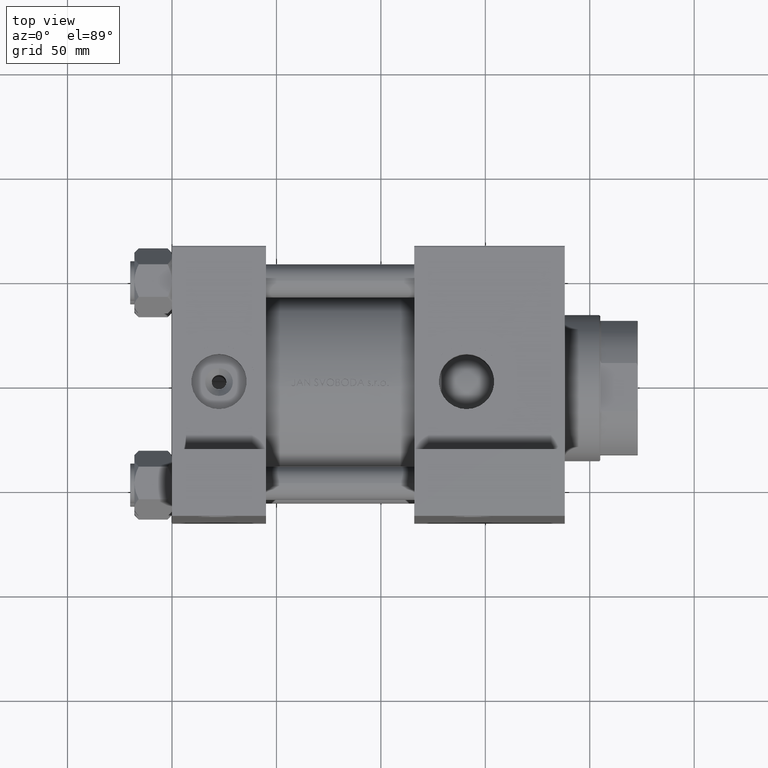
[diagram: clean part render]
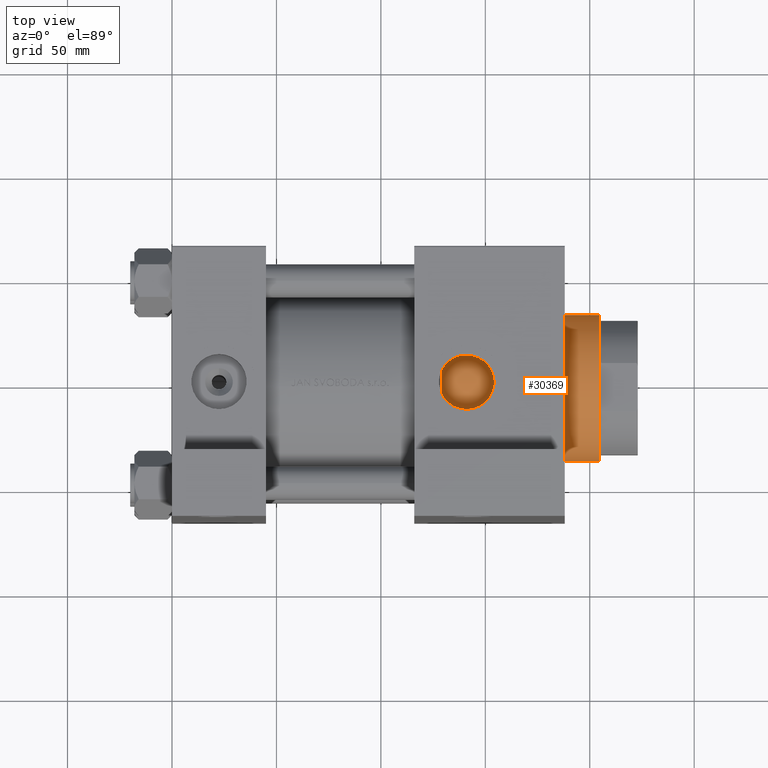
[diagram: same view with one face highlighted and labeled with its STEP entity id]
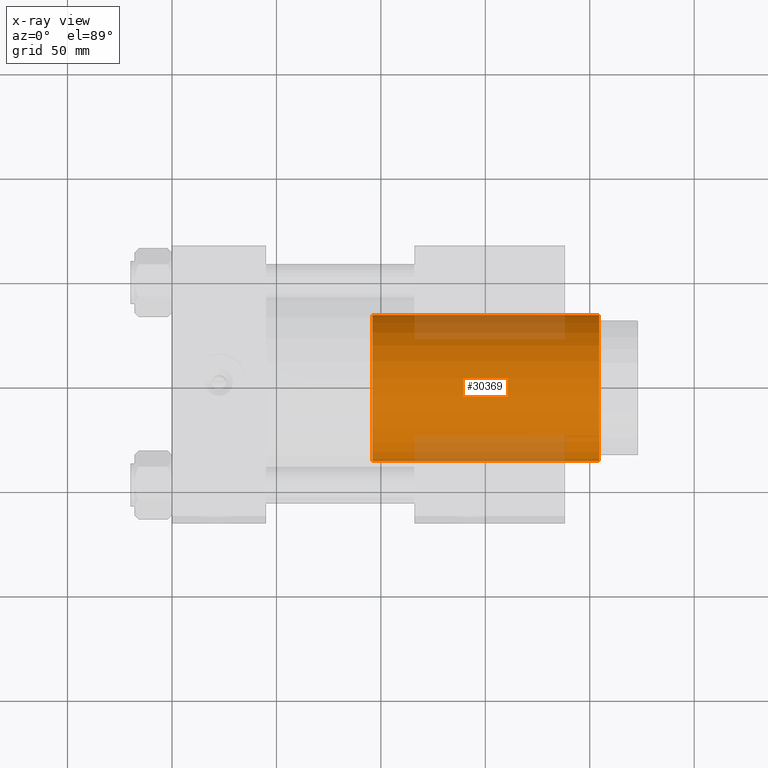
[diagram: x-ray of the same camera — body ghosted, the highlighted face saturated]
A machine part, top view. The second image highlights one B-rep face of the part: STEP entity #30369.
The next image is the same camera in x-ray: the body ghosted, the highlighted face saturated — about 23% of this face is hidden behind the body in this view.
In plain terms, the highlighted cylindrical surface (partial cylindrical patch) has radius 35 mm, axis along (-1, 0, 0).
Its self-contained STEP definition (entity closure, byte-faithful):
#657 = CIRCLE ( 'NONE', #34047, 35.00000000000000711 ) ;
#849 = CARTESIAN_POINT ( 'NONE',  ( 0.000000000000000000, 0.000000000000000000, 159.5000000000000000 ) ) ;
#1695 = VERTEX_POINT ( 'NONE', #35490 ) ;
#2717 = CIRCLE ( 'NONE', #39993, 35.00000000000000711 ) ;
#4368 = DIRECTION ( 'NONE',  ( -0.000000000000000000, -0.000000000000000000, -1.000000000000000000 ) ) ;
#4487 = DIRECTION ( 'NONE',  ( 1.000000000000000000, 0.000000000000000000, 0.000000000000000000 ) ) ;
#7798 = CARTESIAN_POINT ( 'NONE',  ( -35.00000000000000711, 0.000000000000000000, 159.5000000000000000 ) ) ;
#8628 = CARTESIAN_POINT ( 'NONE',  ( 35.00000000000000711, 4.286263797015737285E-15, 159.5000000000000000 ) ) ;
#9185 = CYLINDRICAL_SURFACE ( 'NONE', #26983, 35.00000000000000711 ) ;
#12475 = CARTESIAN_POINT ( 'NONE',  ( 35.00000000000000711, 4.286263797015737285E-15, 51.00000000000000000 ) ) ;
#14956 = EDGE_CURVE ( 'NONE', #1695, #15965, #2717, .T. ) ;
#15965 = VERTEX_POINT ( 'NONE', #12475 ) ;
#20173 = CARTESIAN_POINT ( 'NONE',  ( 0.000000000000000000, 0.000000000000000000, 51.00000000000000000 ) ) ;
#20425 = ORIENTED_EDGE ( 'NONE', *, *, #41091, .F. ) ;
#21338 = CARTESIAN_POINT ( 'NONE',  ( -35.00000000000000711, 0.000000000000000000, 160.0000000000000000 ) ) ;
#21753 = VECTOR ( 'NONE', #36193, 1000.000000000000000 ) ;
#23835 = DIRECTION ( 'NONE',  ( 0.000000000000000000, 0.000000000000000000, 1.000000000000000000 ) ) ;
#26983 = AXIS2_PLACEMENT_3D ( 'NONE', #31562, #39337, #38389 ) ;
#28710 = VECTOR ( 'NONE', #4368, 1000.000000000000000 ) ;
#29369 = EDGE_LOOP ( 'NONE', ( #20425, #40863, #44256, #30175 ) ) ;
#30175 = ORIENTED_EDGE ( 'NONE', *, *, #14956, .T. ) ;
#30369 = ADVANCED_FACE ( 'NONE', ( #42509 ), #9185, .T. ) ;
#31562 = CARTESIAN_POINT ( 'NONE',  ( 0.000000000000000000, 0.000000000000000000, 160.0000000000000000 ) ) ;
#32530 = EDGE_CURVE ( 'NONE', #45471, #46045, #657, .T. ) ;
#33919 = DIRECTION ( 'NONE',  ( 0.000000000000000000, 0.000000000000000000, -1.000000000000000000 ) ) ;
#34047 = AXIS2_PLACEMENT_3D ( 'NONE', #849, #33919, #4487 ) ;
#35034 = DIRECTION ( 'NONE',  ( 1.000000000000000000, 0.000000000000000000, 0.000000000000000000 ) ) ;
#35490 = CARTESIAN_POINT ( 'NONE',  ( -35.00000000000000711, 0.000000000000000000, 51.00000000000000000 ) ) ;
#36193 = DIRECTION ( 'NONE',  ( -0.000000000000000000, -0.000000000000000000, -1.000000000000000000 ) ) ;
#37678 = CARTESIAN_POINT ( 'NONE',  ( 35.00000000000000711, 4.286263797015737285E-15, 160.0000000000000000 ) ) ;
#38389 = DIRECTION ( 'NONE',  ( -1.000000000000000000, 0.000000000000000000, 0.000000000000000000 ) ) ;
#39337 = DIRECTION ( 'NONE',  ( -0.000000000000000000, -0.000000000000000000, -1.000000000000000000 ) ) ;
#39993 = AXIS2_PLACEMENT_3D ( 'NONE', #20173, #23835, #35034 ) ;
#40436 = EDGE_CURVE ( 'NONE', #46045, #1695, #47601, .T. ) ;
#40863 = ORIENTED_EDGE ( 'NONE', *, *, #32530, .T. ) ;
#41091 = EDGE_CURVE ( 'NONE', #45471, #15965, #41325, .T. ) ;
#41325 = LINE ( 'NONE', #37678, #28710 ) ;
#42509 = FACE_OUTER_BOUND ( 'NONE', #29369, .T. ) ;
#44256 = ORIENTED_EDGE ( 'NONE', *, *, #40436, .T. ) ;
#45471 = VERTEX_POINT ( 'NONE', #8628 ) ;
#46045 = VERTEX_POINT ( 'NONE', #7798 ) ;
#47601 = LINE ( 'NONE', #21338, #21753 ) ;